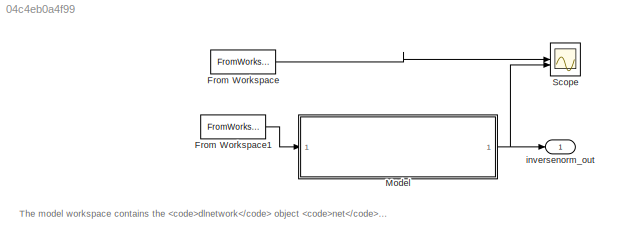
MODEL slx_04c4eb0a4f99
KIND model
CONFIG FixedStep = 1
CONFIG SolverName = FixedStepDiscrete
CONFIG StopTime = steps
WORKSPACE source: mxarray member
WORKSPACE net: dlnetwork (value not decoded)
BLOCK [FromWorkspace] From Workspace
  VariableName = true_SOC
BLOCK [FromWorkspace] From Workspace1
  VariableName = X_in
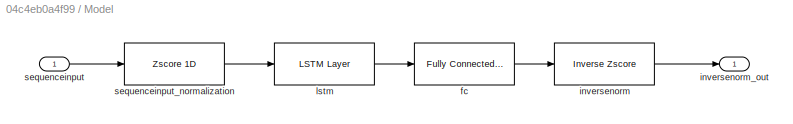
BLOCK [SubSystem] Model
BLOCK [Reference] Model/fc  REF=dlconvfclib/Fully Connected Layer
  SourceBlock = dlconvfclib/Fully Connected Layer
  SourceType = Fully Connected Layer
BLOCK [Reference] Model/inversenorm  REF=dlinputlayernormlib/Inverse Zscore
  SourceBlock = dlinputlayernormlib/Inverse Zscore
  SourceType = Inverse Zscore
BLOCK [Outport] Model/inversenorm_out
BLOCK [Reference] Model/lstm  REF=dlsequencelib/LSTM Layer
  SourceBlock = dlsequencelib/LSTM Layer
  SourceType = LSTM Layer
BLOCK [Inport] Model/sequenceinput
  PortDimensions = [5  1]
BLOCK [Reference] Model/sequenceinput_normalization  REF=dlinputlayernormlib/Zscore 1D
  SourceBlock = dlinputlayernormlib/Zscore 1D
  SourceType = Zscore 1D
BLOCK [Scope] Scope
  ActiveDisplayYMaximum = 1.1551280356943607
  ActiveDisplayYMinimum = 0.10294478759169581
  Floating = off
  GraphicalSettings = {"Style":{"BackgroundColor":[0.12941176470588237,0.12941176470588237,0.12941176470588237],"AxesColor":[0.07058823529411765,0.07058823529411765,0.07058823529411765],"LabelsColor":[0.8509803921568627,0.8509803921568627,0.8509803921568627],"PreserveColors":false,"Visible":[true,true],"LineStyle":["-","-"],"LineWidth":[1.5,1.5],"BarWidth":[0.9,0.9],"LineColor":["auto","auto"],"LineFaceAlpha":[1,1],"Li...<+2159ch>
  MultipleDisplayCache = [{"MaxYLimMag":1.1551280356943607,"MaxYLimReal":1.1551280356943607,"MinYLimMag":0.10294478759169581,"MinYLimReal":0.10294478759169581,"PlotAsMagnitudePhase":false,"ShowGrid":true,"ShowLegend":false,"Title":"%<SignalLabel>","YLabel":""}]
  NumInputPorts = 2
  ScopeFrameLocation = window
  WasSavedAsWebScope = on
  WindowPosition = [476.000000,281.000000,560.000000,420.000000,]
BLOCK [Outport] inversenorm_out
ANNOTATION (root): The model workspace contains the dlnetwork object net . To use this network in a different Simulink model, use a model reference or copy the net variable to the other Simulink model.
LINE From Workspace1:1 -> Model:1
LINE From Workspace:1 -> Scope:1
LINE Model/fc:1 -> Model/inversenorm:1
LINE Model/inversenorm:1 -> Model/inversenorm_out:1
LINE Model/lstm:1 -> Model/fc:1
LINE Model/sequenceinput:1 -> Model/sequenceinput_normalization:1
LINE Model/sequenceinput_normalization:1 -> Model/lstm:1
NET Model:1 -> Scope:2, inversenorm_out:1
note: NET lines group one-source signal fan-out (src -> all destinations, sorted); 1:1 wires keep LINE
